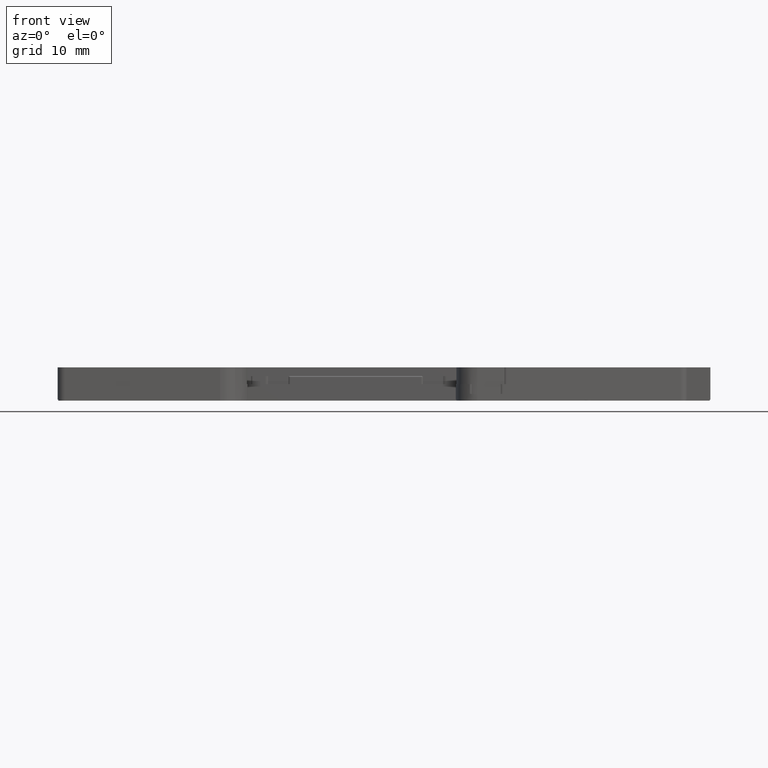
[diagram: clean part render]
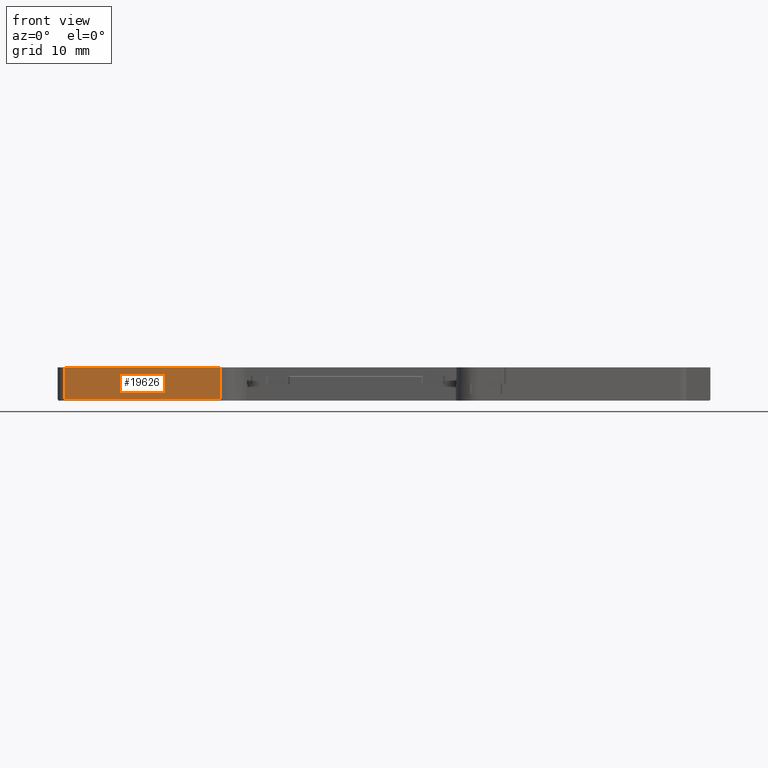
[diagram: same view with one face highlighted and labeled with its STEP entity id]
A machine part, front view. The second image highlights one B-rep face of the part: STEP entity #19626.
In plain terms, the highlighted planar face has unit normal (0, 1, -0).
Its self-contained STEP definition (entity closure, byte-faithful):
#443 = CARTESIAN_POINT ( 'NONE',  ( -87.80094876879645900, -26.19914889353914900, 25.12509204364099700 ) ) ;
#903 = VECTOR ( 'NONE', #15354, 1000.000000000000000 ) ;
#1378 = DIRECTION ( 'NONE',  ( -0.9999999999961597400, 2.771358399274824700E-006, 0.0000000000000000000 ) ) ;
#1485 = CARTESIAN_POINT ( 'NONE',  ( -64.59742535970680400, -26.19921319881864000, 20.32509204364099600 ) ) ;
#1860 = VECTOR ( 'NONE', #1378, 1000.000000000000200 ) ;
#2161 = VERTEX_POINT ( 'NONE', #14135 ) ;
#2368 = ORIENTED_EDGE ( 'NONE', *, *, #2934, .F. ) ;
#2934 = EDGE_CURVE ( 'NONE', #15820, #2161, #15628, .T. ) ;
#3256 = CARTESIAN_POINT ( 'NONE',  ( -87.80094876879645900, -26.19914889353914900, 25.12509204364099700 ) ) ;
#3578 = VECTOR ( 'NONE', #14532, 999.9999999999998900 ) ;
#4158 = ORIENTED_EDGE ( 'NONE', *, *, #11504, .T. ) ;
#4788 = CARTESIAN_POINT ( 'NONE',  ( -64.59742535970680400, -26.19921319881864000, 20.32509204364099600 ) ) ;
#5473 = CARTESIAN_POINT ( 'NONE',  ( -64.59742535970680400, -26.19921319881864400, 25.12509204364099700 ) ) ;
#6095 = LINE ( 'NONE', #443, #3578 ) ;
#6805 = CARTESIAN_POINT ( 'NONE',  ( -87.80094876879645900, -26.19914889353914900, 25.17509204364099800 ) ) ;
#7470 = ORIENTED_EDGE ( 'NONE', *, *, #22573, .F. ) ;
#8072 = DIRECTION ( 'NONE',  ( -0.0000000000000000000, -0.0000000000000000000, -1.000000000000000000 ) ) ;
#8094 = LINE ( 'NONE', #29232, #903 ) ;
#10578 = VERTEX_POINT ( 'NONE', #5473 ) ;
#10996 = LINE ( 'NONE', #22046, #28082 ) ;
#11453 = DIRECTION ( 'NONE',  ( 2.771358399237443900E-006, 0.9999999999961598500, -0.0000000000000000000 ) ) ;
#11504 = EDGE_CURVE ( 'NONE', #20439, #2161, #10996, .T. ) ;
#11575 = ORIENTED_EDGE ( 'NONE', *, *, #13088, .F. ) ;
#12838 = EDGE_LOOP ( 'NONE', ( #11575, #4158, #2368, #7470 ) ) ;
#13088 = EDGE_CURVE ( 'NONE', #20439, #10578, #6095, .T. ) ;
#14135 = CARTESIAN_POINT ( 'NONE',  ( -87.80094876879645900, -26.19914889353914900, 20.32509204364099600 ) ) ;
#14532 = DIRECTION ( 'NONE',  ( 0.9999999999961598500, -2.771358399237443900E-006, 0.0000000000000000000 ) ) ;
#15354 = DIRECTION ( 'NONE',  ( -0.0000000000000000000, -0.0000000000000000000, -1.000000000000000000 ) ) ;
#15628 = LINE ( 'NONE', #1485, #1860 ) ;
#15820 = VERTEX_POINT ( 'NONE', #4788 ) ;
#18185 = DIRECTION ( 'NONE',  ( -0.9999999999961597400, 2.771358399237443500E-006, 0.0000000000000000000 ) ) ;
#19626 = ADVANCED_FACE ( 'NONE', ( #22653 ), #29826, .F. ) ;
#20439 = VERTEX_POINT ( 'NONE', #3256 ) ;
#22046 = CARTESIAN_POINT ( 'NONE',  ( -87.80094876879645900, -26.19914889353914900, 25.17509204364099800 ) ) ;
#22573 = EDGE_CURVE ( 'NONE', #10578, #15820, #8094, .T. ) ;
#22653 = FACE_OUTER_BOUND ( 'NONE', #12838, .T. ) ;
#24305 = AXIS2_PLACEMENT_3D ( 'NONE', #6805, #11453, #18185 ) ;
#28082 = VECTOR ( 'NONE', #8072, 1000.000000000000000 ) ;
#29232 = CARTESIAN_POINT ( 'NONE',  ( -64.59742535970680400, -26.19921319881864000, 25.17509204364099800 ) ) ;
#29826 = PLANE ( 'NONE',  #24305 ) ;